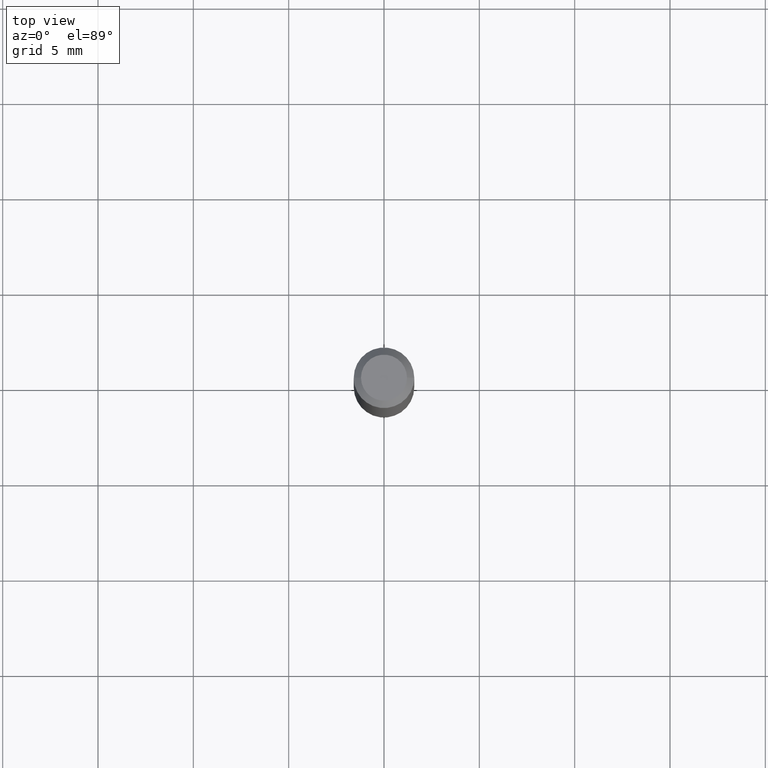
[diagram: clean part render]
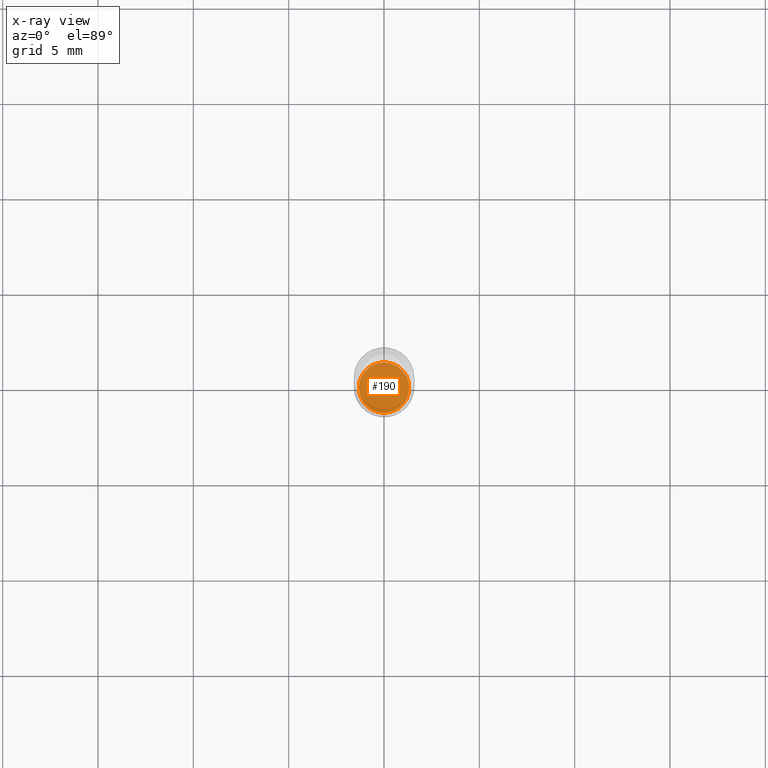
[diagram: x-ray — body ghosted, one internal face saturated and labeled with its STEP entity id]
A machine part, top view, then the same camera in x-ray: the body is ghosted and one INTERNAL B-rep face — a face not visible from any outside direction — is saturated and labeled: STEP entity #190.
In plain terms, the highlighted planar face has unit normal (-0, 0, 1).
Its self-contained STEP definition (entity closure, byte-faithful):
#4 = DIRECTION ( 'NONE',  ( 1.000000000000000000, -6.982962677686258822E-15, 0.000000000000000000 ) ) ;
#11 = DIRECTION ( 'NONE',  ( -2.438088387897960049E-29, 3.491481338843145188E-15, 1.000000000000000000 ) ) ;
#13 = PLANE ( 'NONE',  #349 ) ;
#26 = AXIS2_PLACEMENT_3D ( 'NONE', #188, #177, #336 ) ;
#45 = CIRCLE ( 'NONE', #26, 0.05199999999999999067 ) ;
#46 = ORIENTED_EDGE ( 'NONE', *, *, #347, .F. ) ;
#72 = CIRCLE ( 'NONE', #305, 0.05199999999999999067 ) ;
#86 = CARTESIAN_POINT ( 'NONE',  ( 2.897880535329387383E-29, -4.137405386529128330E-15, -1.185000000000000275 ) ) ;
#93 = VERTEX_POINT ( 'NONE', #312 ) ;
#161 = CARTESIAN_POINT ( 'NONE',  ( -0.05199999999999999067, -3.765273936759765493E-15, -1.185000000000000275 ) ) ;
#177 = DIRECTION ( 'NONE',  ( -2.445468806185136597E-29, 3.491481338843145583E-15, 1.000000000000000000 ) ) ;
#188 = CARTESIAN_POINT ( 'NONE',  ( 2.897880535329387383E-29, -4.137405386529128330E-15, -1.185000000000000275 ) ) ;
#190 = ADVANCED_FACE ( 'NONE', ( #393 ), #13, .F. ) ;
#237 = EDGE_LOOP ( 'NONE', ( #46, #264 ) ) ;
#264 = ORIENTED_EDGE ( 'NONE', *, *, #345, .F. ) ;
#289 = DIRECTION ( 'NONE',  ( 1.000000000000000000, -6.982962677686265922E-15, 4.876176775795935793E-29 ) ) ;
#305 = AXIS2_PLACEMENT_3D ( 'NONE', #86, #326, #4 ) ;
#312 = CARTESIAN_POINT ( 'NONE',  ( 0.05199999999999999067, -4.500519445768813694E-15, -1.185000000000000275 ) ) ;
#326 = DIRECTION ( 'NONE',  ( -2.445468806185136597E-29, 3.491481338843145583E-15, 1.000000000000000000 ) ) ;
#336 = DIRECTION ( 'NONE',  ( 1.000000000000000000, -6.982962677686258822E-15, 0.000000000000000000 ) ) ;
#345 = EDGE_CURVE ( 'NONE', #367, #93, #45, .T. ) ;
#347 = EDGE_CURVE ( 'NONE', #93, #367, #72, .T. ) ;
#349 = AXIS2_PLACEMENT_3D ( 'NONE', #361, #11, #289 ) ;
#361 = CARTESIAN_POINT ( 'NONE',  ( 2.897880535329387383E-29, -4.137405386529128330E-15, -1.185000000000000275 ) ) ;
#367 = VERTEX_POINT ( 'NONE', #161 ) ;
#393 = FACE_OUTER_BOUND ( 'NONE', #237, .T. ) ;